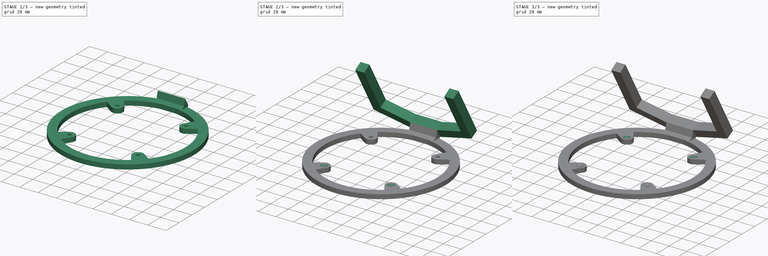
[diagram: build sequence overview — one tinted view per stage of 3, left to right]
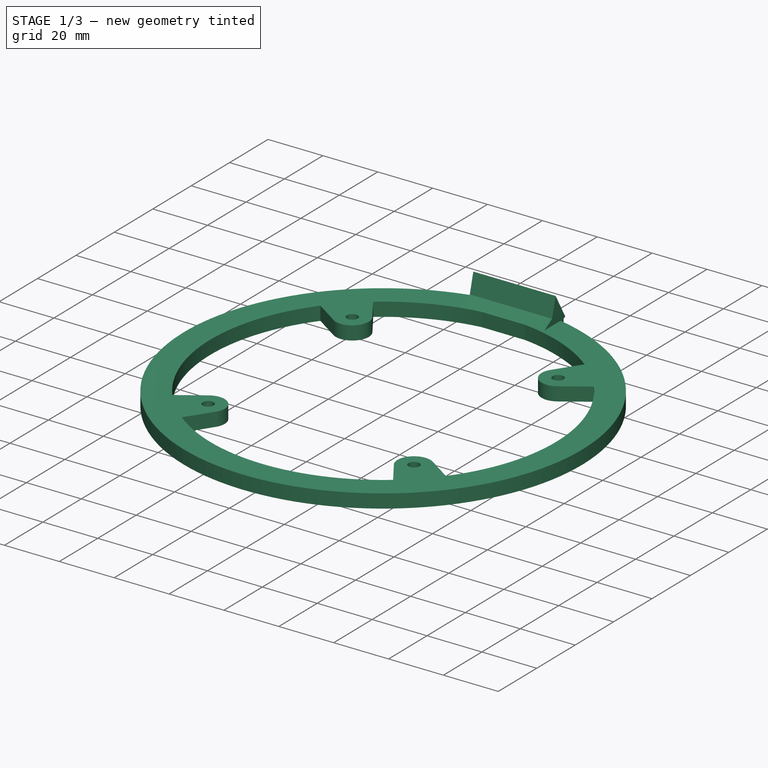
[diagram: stage 1 of 3 — iso view after this stage's code; geometry added in this stage tinted green]
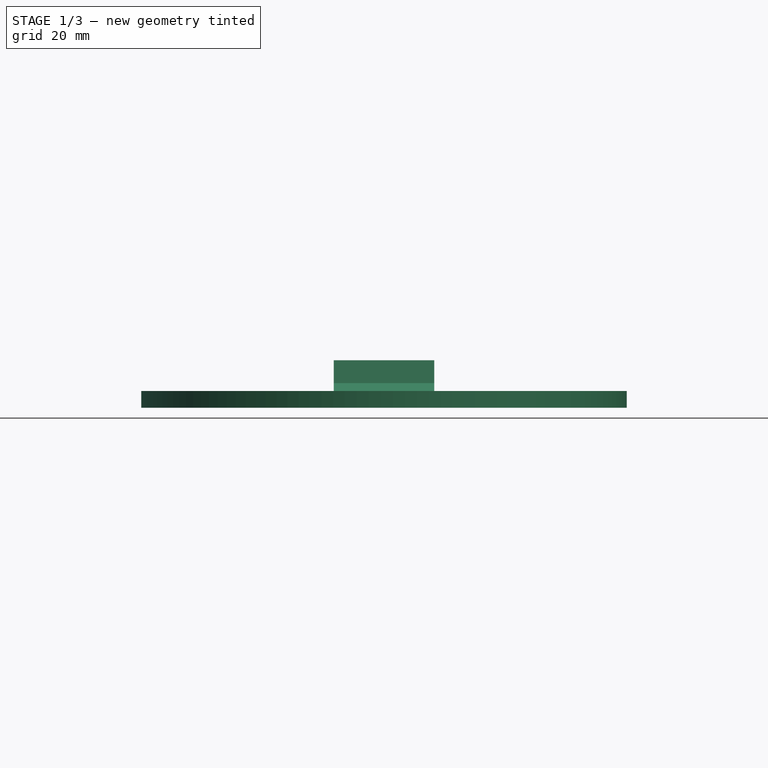
[diagram: stage 1 of 3 — front view after this stage's code; geometry added in this stage tinted green]
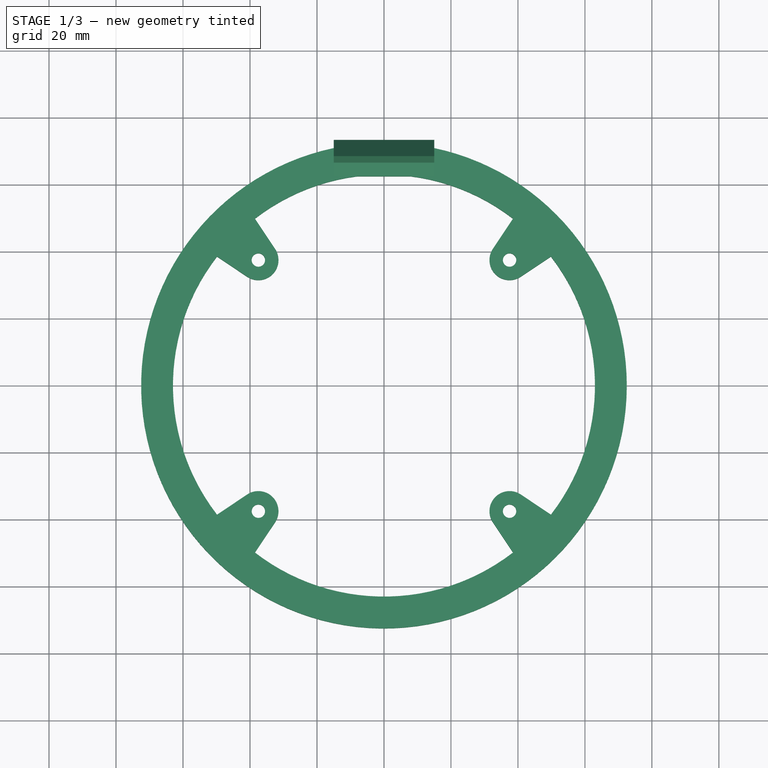
[diagram: stage 1 of 3 — top view after this stage's code; geometry added in this stage tinted green]
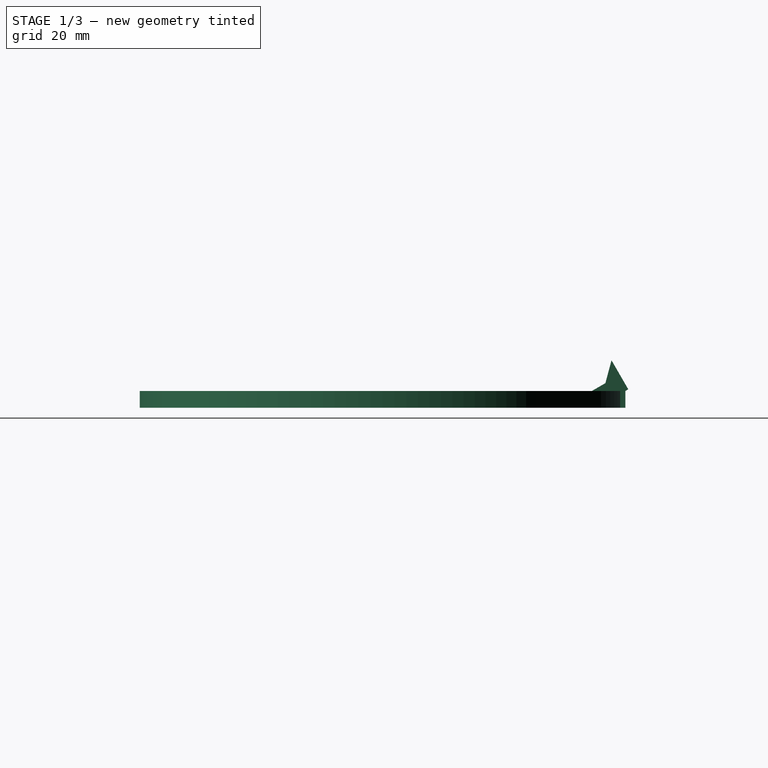
[diagram: stage 1 of 3 — right view after this stage's code; geometry added in this stage tinted green]
FCSTD DOCUMENT  (FreeCAD 0.20R)
Label: round_screen_holder
License: All rights reserved
LicenseURL: http://en.wikipedia.org/wiki/All_rights_reserved
objects: PartDesign::Chamfer×4, Sketcher::SketchObject×3, PartDesign::Pad×3, PartDesign::Body×1
note: 18 computed .brp shape members not serialized (recipe doc carries the construction recipe); baked Part::Feature solids carry a one-line shape summary decoded from their .brp

FEATURE [Sketcher::SketchObject] Sketch
  FullyConstrained = true
  MapMode = 5
  Support = -> [XY_Plane]
  sketch-geometry (44):
    g0: Circle CenterX=0 CenterY=0 CenterZ=0 NormalX=0 NormalY=0 NormalZ=1 AngleXU=0 Radius=72.5
    g1: ArcOfCircle CenterX=-37.5 CenterY=-37.5 CenterZ=0 NormalX=0 NormalY=0 NormalZ=1 AngleXU=0 Radius=6 StartAngle=5.69426 EndAngle=8.44291
    g2: LineSegment StartX=-49.844 StartY=-38.5302 StartZ=0 EndX=-38.5302 EndY=-49.844 EndZ=0
    g3: LineSegment StartX=-40.8328 StartY=-32.5108 StartZ=0 EndX=-37.5 EndY=-37.5 EndZ=0
    g4: LineSegment StartX=-37.5 StartY=-37.5 StartZ=0 EndX=-32.5108 EndY=-40.8328 EndZ=0
    g5: LineSegment StartX=-40.8328 StartY=-32.5108 StartZ=0 EndX=-49.844 EndY=-38.5302 EndZ=0
    g6: LineSegment StartX=-32.5108 StartY=-40.8328 StartZ=0 EndX=-38.5302 EndY=-49.844 EndZ=0
    g7: Circle CenterX=-37.5 CenterY=-37.5 CenterZ=0 NormalX=0 NormalY=0 NormalZ=1 AngleXU=0 Radius=2
    g8: LineSegment StartX=-37.5 StartY=-37.5 StartZ=0 EndX=37.5 EndY=-37.5 EndZ=0
    g9: LineSegment StartX=37.5 StartY=-37.5 StartZ=0 EndX=37.5 EndY=37.5 EndZ=0
    g10: LineSegment StartX=37.5 StartY=37.5 StartZ=0 EndX=-37.5 EndY=37.5 EndZ=0
    g11: LineSegment StartX=-37.5 StartY=37.5 StartZ=0 EndX=-37.5 EndY=-37.5 EndZ=0
    g12: LineSegment StartX=40.8328 StartY=-32.5108 StartZ=0 EndX=49.844 EndY=-38.5302 EndZ=0
    g13: LineSegment StartX=38.5302 StartY=-49.844 StartZ=0 EndX=49.844 EndY=-38.5302 EndZ=0
    g14: LineSegment StartX=32.5108 StartY=-40.8328 StartZ=0 EndX=38.5302 EndY=-49.844 EndZ=0
    g15: LineSegment StartX=32.5108 StartY=-40.8328 StartZ=0 EndX=37.5 EndY=-37.5 EndZ=0
    g16: ArcOfCircle CenterX=37.5 CenterY=-37.5 CenterZ=0 NormalX=0 NormalY=0 NormalZ=1 AngleXU=0 Radius=6 StartAngle=0.981869 EndAngle=3.73052
    g17: LineSegment StartX=37.5 StartY=-37.5 StartZ=0 EndX=40.8328 EndY=-32.5108 EndZ=0
    g18: Circle CenterX=37.5 CenterY=-37.5 CenterZ=0 NormalX=0 NormalY=0 NormalZ=1 AngleXU=0 Radius=2
    g19: LineSegment StartX=49.844 StartY=38.5302 StartZ=0 EndX=38.5302 EndY=49.844 EndZ=0
    g20: LineSegment StartX=40.8328 StartY=32.5108 StartZ=0 EndX=49.844 EndY=38.5302 EndZ=0
    g21: LineSegment StartX=40.8328 StartY=32.5108 StartZ=0 EndX=37.5 EndY=37.5 EndZ=0
    g22: ArcOfCircle CenterX=37.5 CenterY=37.5 CenterZ=0 NormalX=0 NormalY=0 NormalZ=1 AngleXU=0 Radius=6 StartAngle=2.55267 EndAngle=5.30132
    g23: LineSegment StartX=32.5108 StartY=40.8328 StartZ=0 EndX=38.5302 EndY=49.844 EndZ=0
    g24: LineSegment StartX=37.5 StartY=37.5 StartZ=0 EndX=32.5108 EndY=40.8328 EndZ=0
    g25: Circle CenterX=37.5 CenterY=37.5 CenterZ=0 NormalX=0 NormalY=0 NormalZ=1 AngleXU=0 Radius=2
    g26: LineSegment StartX=-40.8328 StartY=32.5108 StartZ=0 EndX=-49.844 EndY=38.5302 EndZ=0
    g27: ArcOfCircle CenterX=-37.5 CenterY=37.5 CenterZ=0 NormalX=0 NormalY=0 NormalZ=1 AngleXU=0 Radius=6 StartAngle=4.12346 EndAngle=6.87211
    g28: LineSegment StartX=-32.5108 StartY=40.8328 StartZ=0 EndX=-38.5302 EndY=49.844 EndZ=0
    g29: LineSegment StartX=-38.5302 StartY=49.844 StartZ=0 EndX=-49.844 EndY=38.5302 EndZ=0
    g30: Circle CenterX=-37.5 CenterY=37.5 CenterZ=0 NormalX=0 NormalY=0 NormalZ=1 AngleXU=0 Radius=2
    g31: LineSegment StartX=-32.5108 StartY=40.8328 StartZ=0 EndX=-37.5 EndY=37.5 EndZ=0
    g32: LineSegment StartX=-37.5 StartY=37.5 StartZ=0 EndX=-40.8328 EndY=32.5108 EndZ=0
    g33: ArcOfCircle CenterX=0 CenterY=0 CenterZ=0 NormalX=0 NormalY=0 NormalZ=1 AngleXU=0 Radius=63 StartAngle=2.48352 EndAngle=3.79966
    g34: ArcOfCircle CenterX=0 CenterY=0 CenterZ=0 NormalX=0 NormalY=0 NormalZ=1 AngleXU=0 Radius=63 StartAngle=0.912726 EndAngle=2.22887
    g35: ArcOfCircle CenterX=0 CenterY=0 CenterZ=0 NormalX=0 NormalY=0 NormalZ=1 AngleXU=0 Radius=63 StartAngle=5.62512 EndAngle=6.94126
    g36: ArcOfCircle CenterX=0 CenterY=0 CenterZ=0 NormalX=0 NormalY=0 NormalZ=1 AngleXU=0 Radius=63 StartAngle=4.05432 EndAngle=5.37046
    g37: LineSegment StartX=-37.5 StartY=37.5 StartZ=0 EndX=0 EndY=0 EndZ=0
    g38: LineSegment StartX=0 StartY=0 StartZ=0 EndX=37.5 EndY=-37.5 EndZ=0
    g39: LineSegment StartX=0 StartY=0 StartZ=0 EndX=37.5 EndY=37.5 EndZ=0
    g40: LineSegment StartX=-38.5302 StartY=49.844 StartZ=0 EndX=0 EndY=0 EndZ=0
    g41: LineSegment StartX=0 StartY=0 StartZ=0 EndX=49.844 EndY=38.5302 EndZ=0
    g42: LineSegment StartX=0 StartY=0 StartZ=0 EndX=-49.844 EndY=-38.5302 EndZ=0
    g43: LineSegment StartX=0 StartY=0 StartZ=0 EndX=38.5302 EndY=-49.844 EndZ=0
  constraints (108):
    c: Coincident(g3,g1)
    c: Coincident(g3,g1)
    c: Coincident(g4,g1)
    c: Coincident(g4,g1)
    c: Coincident(g5,g1)
    c: Coincident(g5,g2)
    c: Coincident(g6,g1)
    c: Coincident(g6,g2)
    c: Equal(g6,g5)
    c: Coincident(g7,g1)
    c: Diameter(g7) = 4
    c: Radius(g1) = 6
    c: Perpendicular(g4,g6)
    c: Perpendicular(g3,g5)
    c: Coincident(g8,g9)
    c: Coincident(g9,g10)
    c: Coincident(g10,g11)
    c: Coincident(g11,g8)
    c: Horizontal(g8)
    c: Horizontal(g10)
    c: Vertical(g9)
    c: Vertical(g11)
    c: Coincident(g8,g1)
    c: Equal(g11,g10)
    c: Distance(g11) = 75
    c: Distance(g2) = 16
    c: Diameter(g0) = 145
    c: Coincident(g15,g16)
    c: Coincident(g15,g16)
    c: Coincident(g17,g16)
    c: Coincident(g17,g16)
    c: Coincident(g14,g16)
    c: Coincident(g14,g13)
    c: Coincident(g12,g16)
    c: Coincident(g12,g13)
    c: Equal(g12,g14)
    c: Coincident(g18,g16)
    c: Equal(g7,g18) = 4
    c: Equal(g1,g16) = 6
    c: Perpendicular(g17,g12)
    c: Perpendicular(g15,g14)
    c: Equal(g2,g13) = 16
    c: Coincident(g16,g8)
    c: Coincident(g21,g22)
    c: Coincident(g21,g22)
    c: Coincident(g24,g22)
    c: Coincident(g24,g22)
    c: Coincident(g20,g22)
    c: Coincident(g20,g19)
    c: Coincident(g23,g22)
    c: Coincident(g23,g19)
    c: Equal(g23,g20)
    c: Coincident(g25,g22)
    c: Equal(g7,g25) = 4
    c: Equal(g1,g22) = 6
    c: Perpendicular(g24,g23)
    c: Perpendicular(g21,g20)
    c: Equal(g2,g19) = 16
    c: Coincident(g31,g27)
    c: Coincident(g31,g27)
    c: Coincident(g32,g27)
    c: Coincident(g32,g27)
    c: Coincident(g28,g27)
    c: Coincident(g28,g29)
    c: Coincident(g26,g27)
    c: Coincident(g26,g29)
    c: Equal(g26,g28)
    c: Coincident(g30,g27)
    c: Equal(g7,g30) = 4
    c: Equal(g1,g27) = 6
    c: Perpendicular(g32,g26)
    c: Perpendicular(g31,g28)
    c: Equal(g2,g29) = 16
    c: Coincident(g22,g9)
    c: Coincident(g27,g10)
    c: Coincident(g33,g0)
    c: Coincident(g34,g0)
    c: Coincident(g35,g0)
    c: Coincident(g36,g0)
    c: Coincident(g26,g33)
    c: Coincident(g33,g5)
    c: Coincident(g36,g6)
    c: Coincident(g36,g14)
    c: Coincident(g12,g35)
    c: Coincident(g35,g20)
    c: Coincident(g34,g23)
    c: Coincident(g34,g28)
    c: Coincident(g0,g-1)
    c: Coincident(g37,g27)
    c: Coincident(g37,g0)
    c: Coincident(g38,g0)
    c: Coincident(g38,g16)
    c: Equal(g38,g37)
    c: Coincident(g39,g0)
    c: Coincident(g39,g22)
    c: Equal(g39,g37)
    c: Coincident(g40,g28)
    c: Coincident(g40,g0)
    c: Coincident(g41,g0)
    c: Coincident(g41,g20)
    c: Equal(g41,g40)
    c: Coincident(g42,g0)
    c: Coincident(g42,g5)
    c: Equal(g40,g42)
    c: Coincident(g43,g0)
    c: Coincident(g43,g14)
    c: Equal(g43,g42)
    c: Radius(g35) = 63
FEATURE [PartDesign::Pad] Pad
  Direction = (0,0,1)
  Length = 5
  Length2 = 10
  Profile = -> Sketch
  ReferenceAxis = -> Sketch [N_Axis]
  Type = 0
FEATURE [Sketcher::SketchObject] Sketch001
  ExternalGeometry = -> [Pad]
  FullyConstrained = true
  MapMode = 5
  Placement = pos=(0,0,0) rot=(0.57735,0.57735,0.57735;2.0944rad)
  Support = -> [YZ_Plane]
  sketch-geometry (11):
    g0: LineSegment StartX=72.5 StartY=5 StartZ=0 EndX=73.366 EndY=5.5 EndZ=0
    g1: LineSegment StartX=73.366 StartY=5.5 StartZ=0 EndX=70.866 EndY=9.83013 EndZ=0
    g2: LineSegment StartX=62.5 StartY=5 StartZ=0 EndX=70.866 EndY=9.83013 EndZ=0
    g3: LineSegment StartX=62.5 StartY=5 StartZ=0 EndX=62.5 EndY=0 EndZ=0
    g4: LineSegment StartX=62.5 StartY=0 StartZ=0 EndX=72.5 EndY=0 EndZ=0
    g5: LineSegment StartX=72.5 StartY=0 StartZ=0 EndX=72.5 EndY=5 EndZ=0
    g6: LineSegment StartX=62.5 StartY=5 StartZ=0 EndX=66.5359 EndY=7.33013 EndZ=0
    g7: LineSegment StartX=73.366 StartY=5.5 StartZ=0 EndX=68.366 EndY=14.1603 EndZ=0
    g8: LineSegment StartX=66.5359 StartY=7.33013 StartZ=0 EndX=68.366 EndY=14.1603 EndZ=0
    g9: LineSegment StartX=66.5359 StartY=7.33013 StartZ=0 EndX=73.366 EndY=5.5 EndZ=0
    g10: LineSegment StartX=66.5359 StartY=7.33013 StartZ=0 EndX=70.866 EndY=9.83013 EndZ=0
  constraints (29):
    c: Coincident(g0,g-3)
    c: Coincident(g1,g0)
    c: Perpendicular(g0,g1)
    c: PointOnObject(g2,g-3)
    c: Coincident(g2,g1)
    c: Parallel(g2,g0)
    c: Distance(g1) = 5
    c: Angle(g0,g-1) = 2.61799
    c: Distance(g0) = 1
    c: Coincident(g3,g2)
    c: PointOnObject(g3,g-1)
    c: Vertical(g3)
    c: Coincident(g4,g3)
    c: Coincident(g5,g4)
    c: Coincident(g5,g0)
    c: Vertical(g5)
    c: Horizontal(g4)
    c: Coincident(g6,g3)
    c: PointOnObject(g6,g2)
    c: Coincident(g7,g0)
    c: PointOnObject(g1,g7)
    c: Coincident(g8,g6)
    c: Coincident(g8,g7)
    c: Coincident(g9,g6)
    c: Coincident(g9,g0)
    c: Equal(g9,g8)
    c: Coincident(g10,g6)
    c: Coincident(g10,g1)
    c: Equal(g1,g10)
FEATURE [PartDesign::Pad] Pad001
  BaseFeature = -> Pad
  Direction = (1,-2e-16,3e-16)
  Length = 30
  Length2 = 10
  Midplane = true
  Profile = -> Sketch001
  ReferenceAxis = -> Sketch001 [N_Axis]
  Type = 0
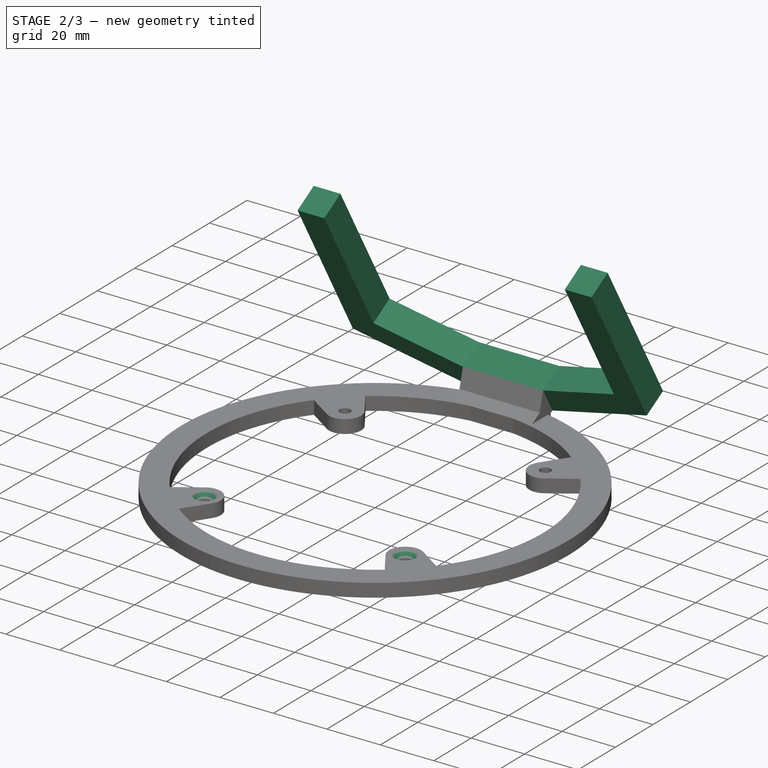
[diagram: stage 2 of 3 — iso view after this stage's code; geometry added in this stage tinted green]
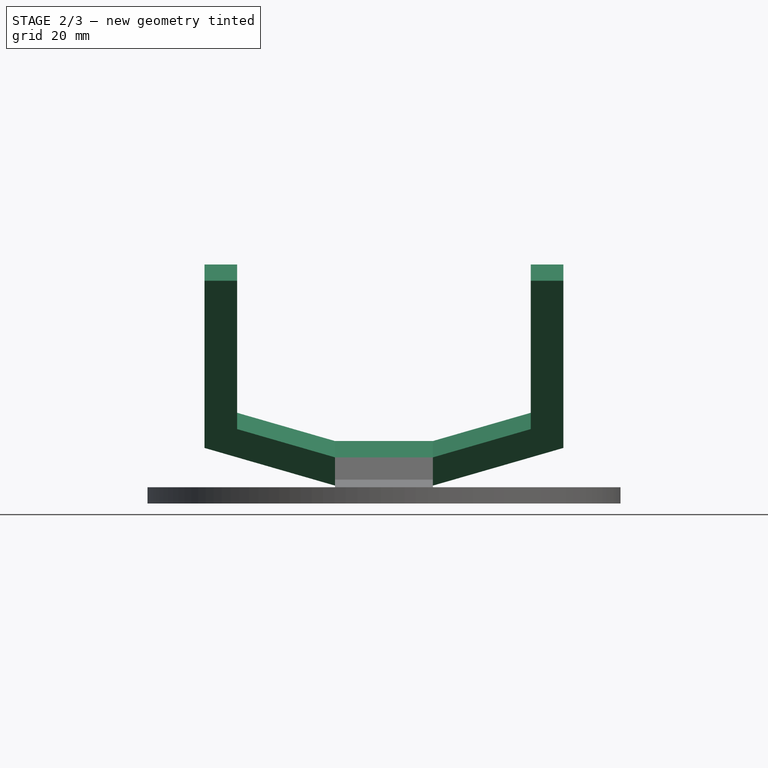
[diagram: stage 2 of 3 — front view after this stage's code; geometry added in this stage tinted green]
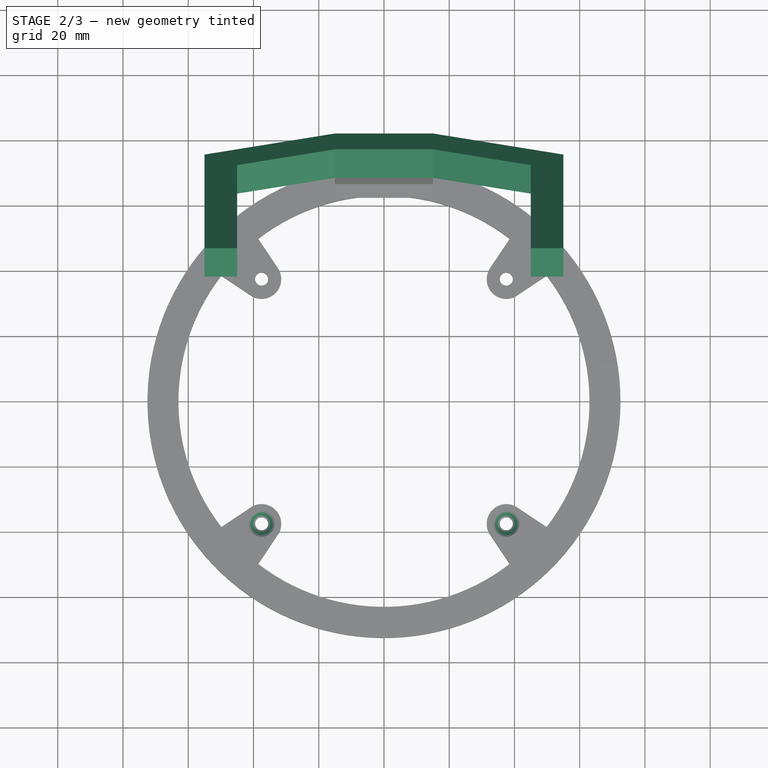
[diagram: stage 2 of 3 — top view after this stage's code; geometry added in this stage tinted green]
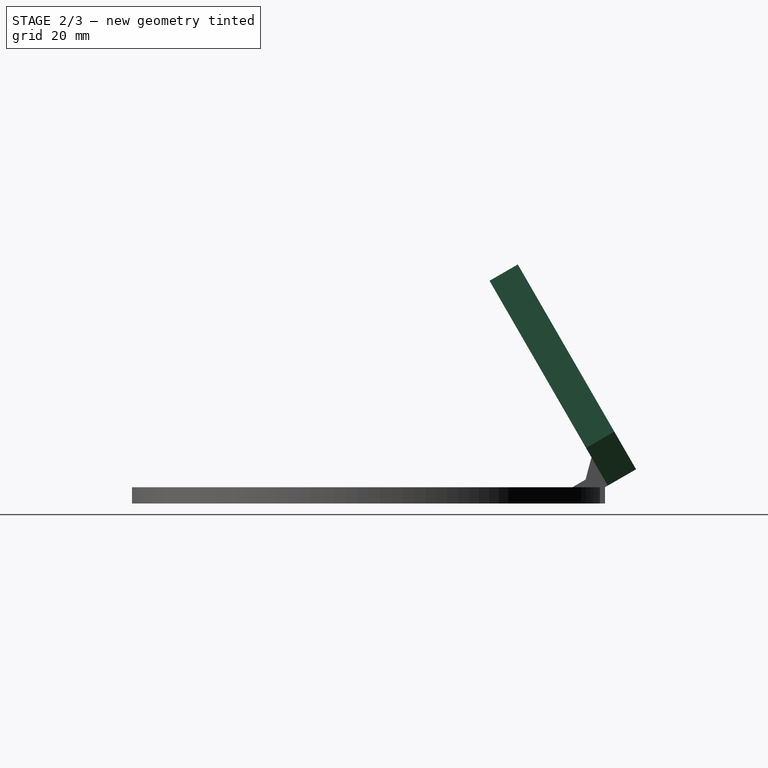
[diagram: stage 2 of 3 — right view after this stage's code; geometry added in this stage tinted green]
FEATURE [Sketcher::SketchObject] Sketch002
  ExternalGeometry = -> [Pad001]
  FullyConstrained = true
  MapMode = 5
  Placement = pos=(3.5e-15,57.4061,33.1434) rot=(0,0.5,0.866025;3.14159rad)
  Support = -> [Pad001]
  sketch-geometry (18):
    g0: LineSegment StartX=-15 StartY=-21.9199 StartZ=0 EndX=-45 EndY=-11.9199 EndZ=0
    g1: LineSegment StartX=-15 StartY=-31.9199 StartZ=0 EndX=-55 EndY=-18.5865 EndZ=0
    g2: LineSegment StartX=-55 StartY=-18.5865 StartZ=0 EndX=-55 EndY=40.5801 EndZ=0
    g3: LineSegment StartX=-55 StartY=40.5801 StartZ=0 EndX=-45 EndY=40.5801 EndZ=0
    g4: LineSegment StartX=-45 StartY=40.5801 StartZ=0 EndX=-45 EndY=-11.9199 EndZ=0
    g5: LineSegment StartX=-45 StartY=-11.9199 StartZ=0 EndX=-45 EndY=-21.9199 EndZ=0
    g6: LineSegment StartX=-15 StartY=-21.9199 StartZ=0 EndX=-45 EndY=-21.9199 EndZ=0
    g7: LineSegment StartX=-15 StartY=-31.9199 StartZ=0 EndX=15 EndY=-31.9199 EndZ=0
    g8: LineSegment StartX=15 StartY=-31.9199 StartZ=0 EndX=55 EndY=-18.5865 EndZ=0
    g9: LineSegment StartX=55 StartY=-18.5865 StartZ=0 EndX=55 EndY=40.5801 EndZ=0
    g10: LineSegment StartX=55 StartY=40.5801 StartZ=0 EndX=45 EndY=40.5801 EndZ=0
    g11: LineSegment StartX=45 StartY=40.5801 StartZ=0 EndX=45 EndY=-11.9199 EndZ=0
    g12: LineSegment StartX=45 StartY=-11.9199 StartZ=0 EndX=15 EndY=-21.9199 EndZ=0
    g13: LineSegment StartX=15 StartY=-21.9199 StartZ=0 EndX=-15 EndY=-21.9199 EndZ=0
    g14: LineSegment StartX=45 StartY=-11.9199 StartZ=0 EndX=45 EndY=-21.9199 EndZ=0
    g15: LineSegment StartX=15 StartY=-21.9199 StartZ=0 EndX=45 EndY=-21.9199 EndZ=0
    g16: GeomPoint X=0 Y=40.5801 Z=0
    g17: LineSegment StartX=-45 StartY=40.5801 StartZ=0 EndX=45 EndY=40.5801 EndZ=0
  constraints (48):
    c: Coincident(g0,g-3)
    c: Coincident(g1,g-4)
    c: Coincident(g2,g1)
    c: Vertical(g2)
    c: Coincident(g3,g2)
    c: Horizontal(g3)
    c: Coincident(g4,g3)
    c: Vertical(g4)
    c: Coincident(g4,g0)
    c: Equal(g-5,g3)
    c: Coincident(g5,g0)
    c: PointOnObject(g5,g1)
    c: Vertical(g5)
    c: Equal(g5,g-5)
    c: Coincident(g6,g0)
    c: PointOnObject(g6,g5)
    c: Horizontal(g6)
    c: Distance(g6) = 30
    c: Coincident(g7,g1)
    c: Coincident(g7,g-6)
    c: Coincident(g8,g7)
    c: Coincident(g9,g8)
    c: Vertical(g9)
    c: Coincident(g10,g9)
    c: Horizontal(g10)
    c: Coincident(g11,g10)
    c: Vertical(g11)
    c: Coincident(g12,g11)
    c: Coincident(g12,g-6)
    c: Coincident(g13,g12)
    c: Coincident(g13,g0)
    c: Equal(g3,g10)
    c: Coincident(g14,g11)
    c: PointOnObject(g14,g8)
    c: Vertical(g14)
    c: Equal(g14,g10)
    c: Coincident(g15,g12)
    c: PointOnObject(g15,g14)
    c: Horizontal(g15)
    c: Equal(g15,g6)
    c: Equal(g11,g4)
    c: PointOnObject(g6,g1)
    c: PointOnObject(g15,g8)
    c: PointOnObject(g16,g-2)
    c: PointOnObject(g16,g-7)
    c: Coincident(g17,g3)
    c: Coincident(g17,g10)
    c: PointOnObject(g16,g17)
FEATURE [PartDesign::Pad] Pad002
  BaseFeature = -> Pad001
  Direction = (1e-16,0.866025,0.5)
  Length = 10
  Length2 = 10
  Profile = -> Sketch002
  ReferenceAxis = -> Sketch002 [N_Axis]
  Type = 0
FEATURE [PartDesign::Chamfer] Chamfer
  Angle = 45
  Base = -> Pad002 [Edge60]
  BaseFeature = -> Pad002
  ChamferType = 0
  FlipDirection = false
  Size = 2
  Size2 = 1
  SupportTransform = false
  UseAllEdges = false
FEATURE [PartDesign::Chamfer] Chamfer001
  Angle = 45
  Base = -> Chamfer [Edge25]
  BaseFeature = -> Chamfer
  ChamferType = 0
  FlipDirection = false
  Size = 2
  Size2 = 1
  SupportTransform = false
  UseAllEdges = false
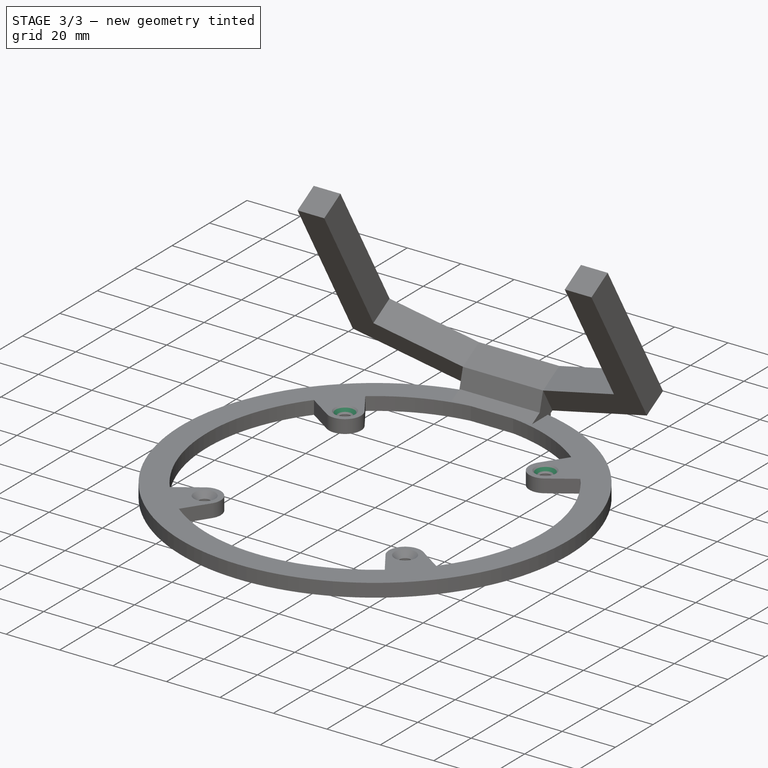
[diagram: stage 3 of 3 — iso view after this stage's code; geometry added in this stage tinted green]
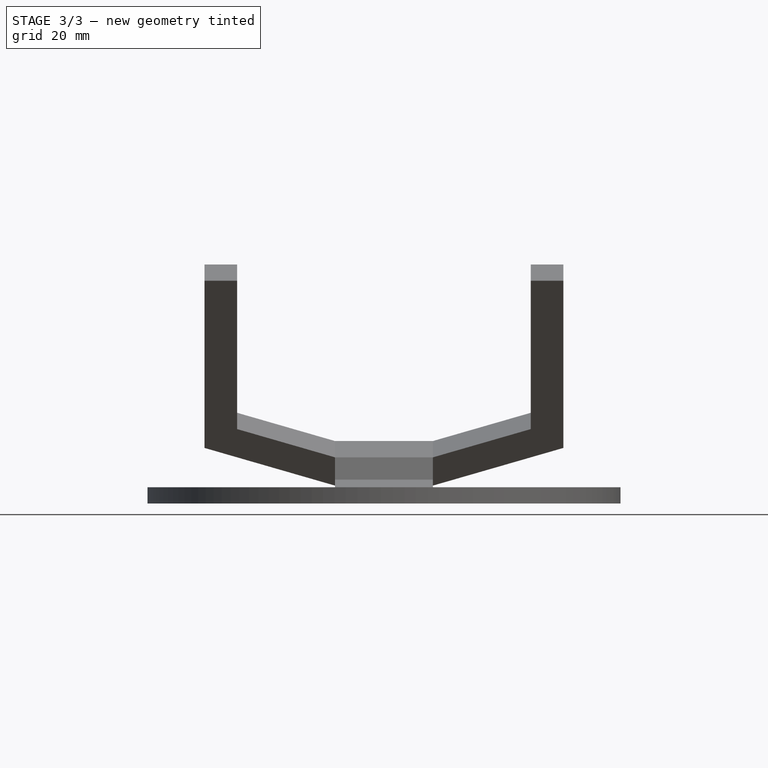
[diagram: stage 3 of 3 — front view after this stage's code; geometry added in this stage tinted green]
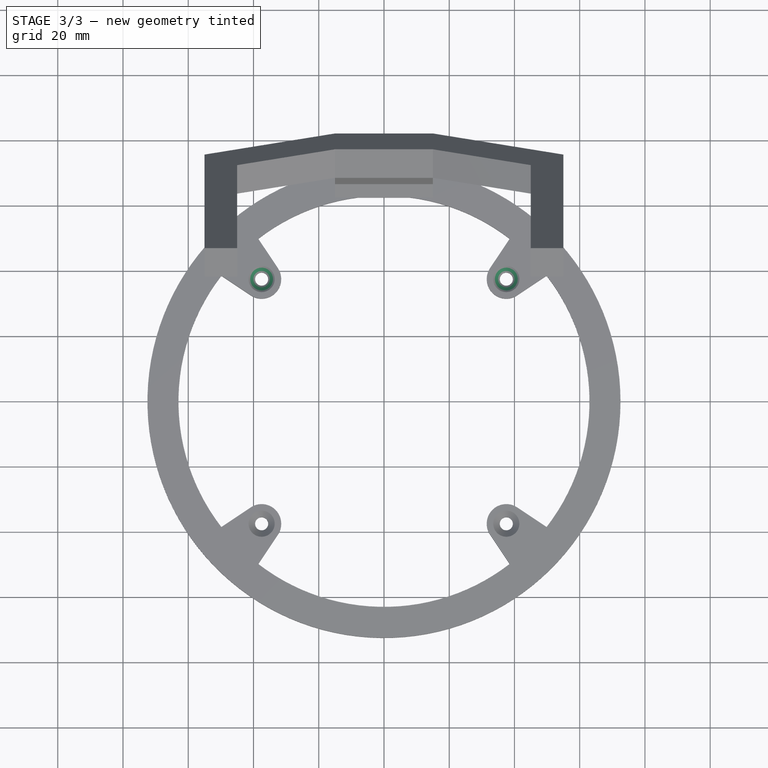
[diagram: stage 3 of 3 — top view after this stage's code; geometry added in this stage tinted green]
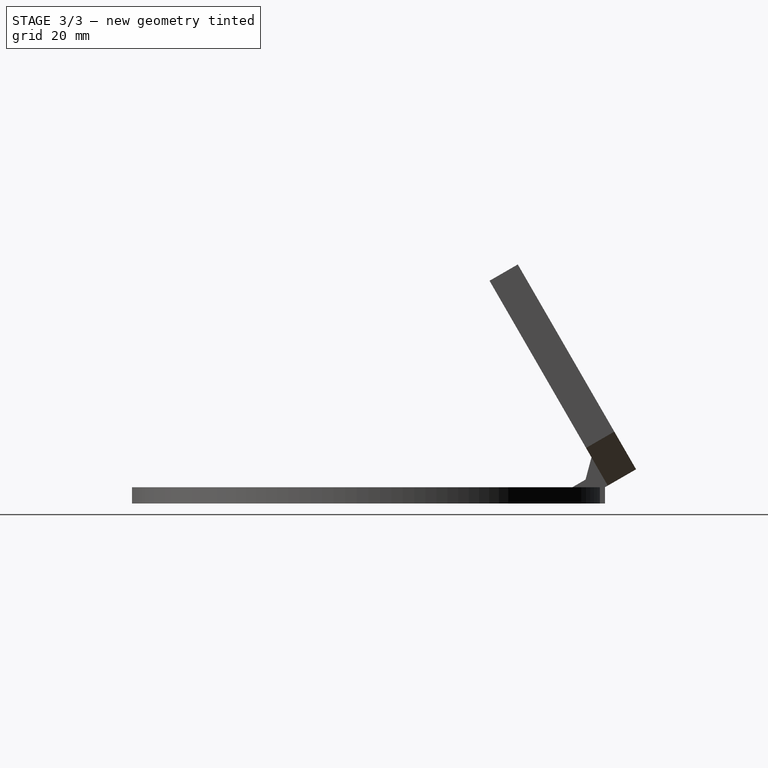
[diagram: stage 3 of 3 — right view after this stage's code; geometry added in this stage tinted green]
FEATURE [PartDesign::Chamfer] Chamfer002
  Angle = 45
  Base = -> Chamfer001 [Edge26]
  BaseFeature = -> Chamfer001
  ChamferType = 0
  FlipDirection = false
  Size = 2
  Size2 = 1
  SupportTransform = false
  UseAllEdges = false
FEATURE [PartDesign::Chamfer] Chamfer003
  Angle = 45
  Base = -> Chamfer002 [Edge27]
  BaseFeature = -> Chamfer002
  ChamferType = 0
  FlipDirection = false
  Size = 2
  Size2 = 1
  SupportTransform = false
  UseAllEdges = false
FEATURE [PartDesign::Body] Body
  Group = -> [Sketch,Pad,Sketch001,Pad001,Sketch002,Pad002,Chamfer,Chamfer001,Chamfer002,Chamfer003]
  Origin = -> Origin
  Tip = -> Chamfer003
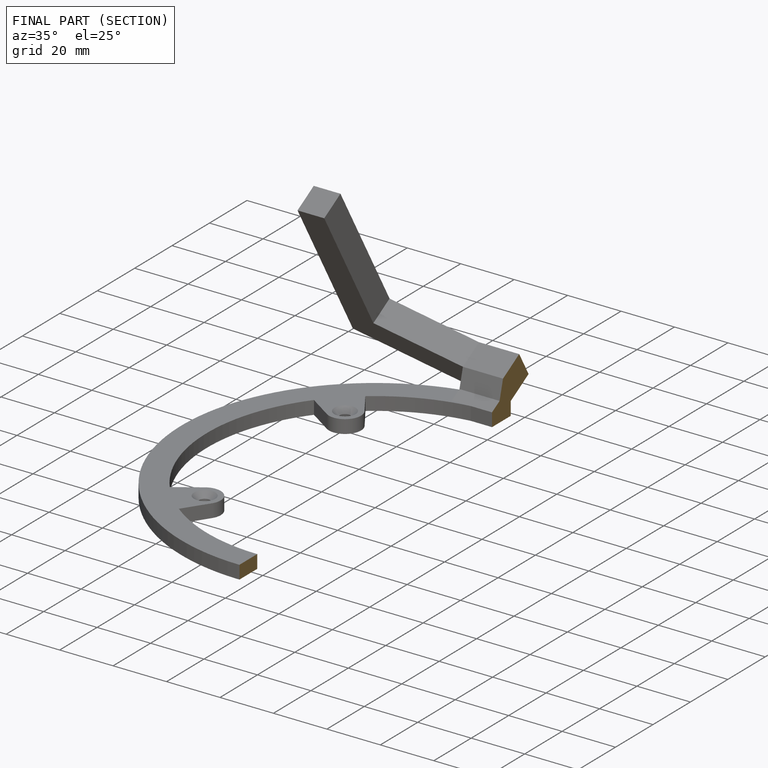
[diagram: finished part — half-section view (interior)]
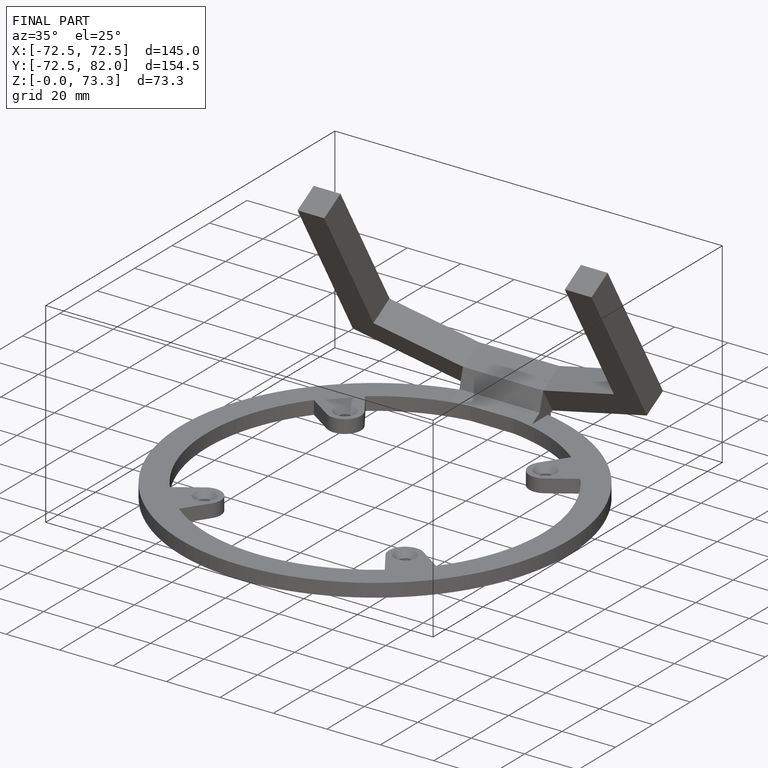
[diagram: finished part — iso view with bounding-box wireframe]
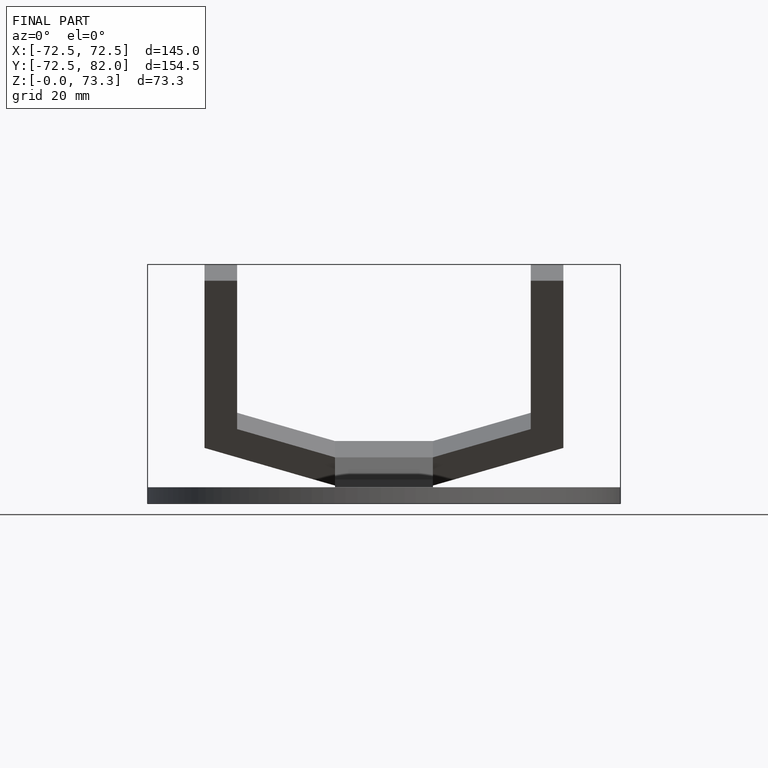
[diagram: finished part — front view with bounding-box wireframe]
